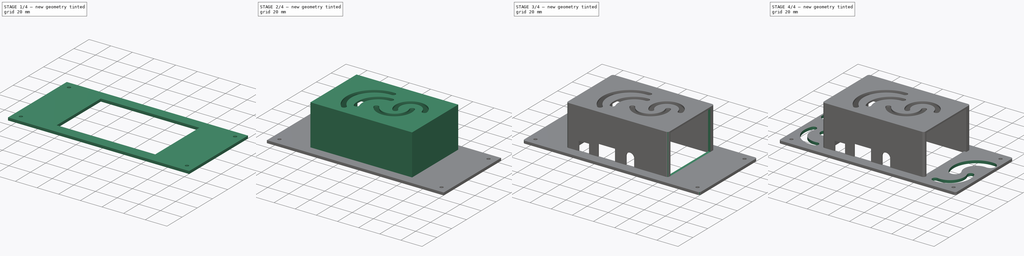
[diagram: build sequence overview — one tinted view per stage of 4, left to right]
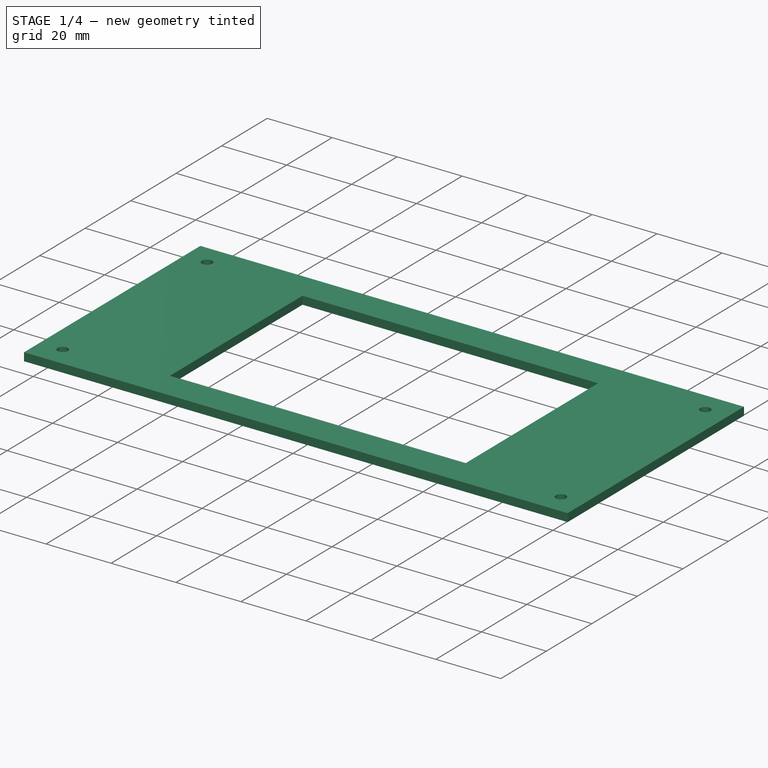
[diagram: stage 1 of 4 — iso view after this stage's code; geometry added in this stage tinted green]
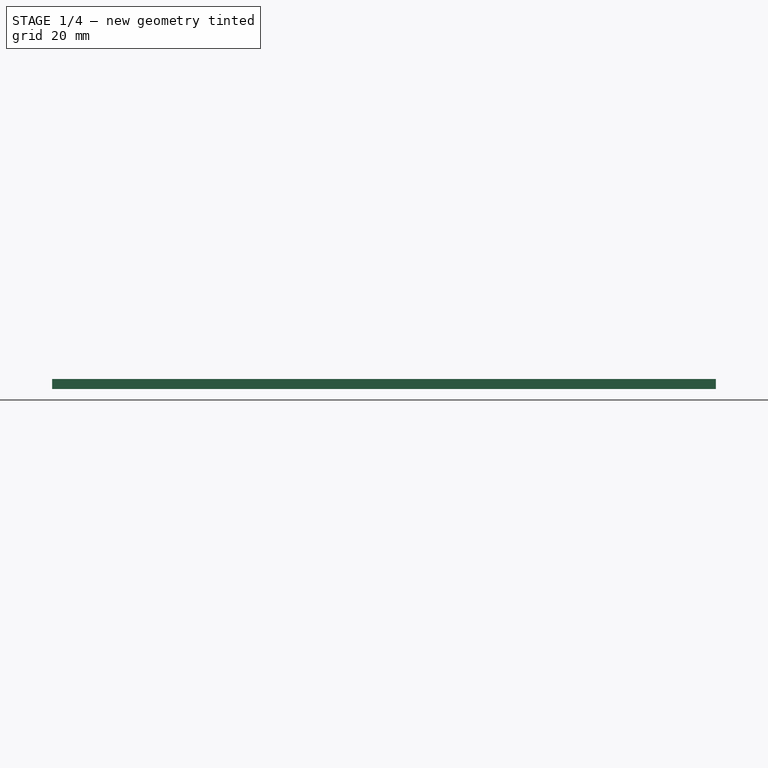
[diagram: stage 1 of 4 — front view after this stage's code; geometry added in this stage tinted green]
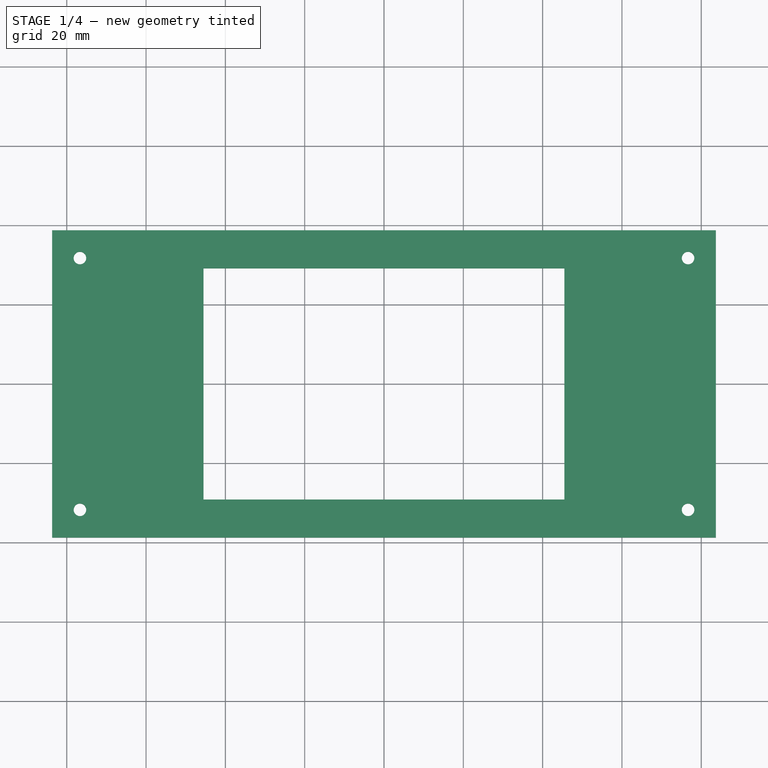
[diagram: stage 1 of 4 — top view after this stage's code; geometry added in this stage tinted green]
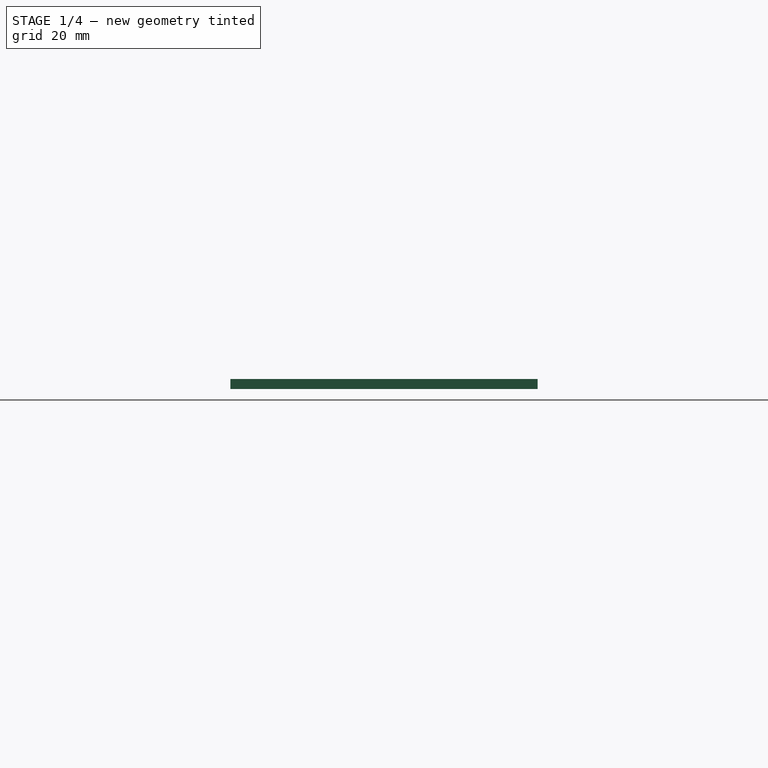
[diagram: stage 1 of 4 — right view after this stage's code; geometry added in this stage tinted green]
FCSTD DOCUMENT  (FreeCAD 0.20R29177 +426 (Git))
Label: libre_case (1)
License: All rights reserved
LicenseURL: http://en.wikipedia.org/wiki/All_rights_reserved
objects: Sketcher::SketchObject×9, PartDesign::Pocket×5, PartDesign::Pad×3, Spreadsheet::Sheet×1, PartDesign::Fillet×1, PartDesign::Mirrored×1, PartDesign::Body×1
note: 29 computed .brp shape members not serialized (recipe doc carries the construction recipe); baked Part::Feature solids carry a one-line shape summary decoded from their .brp
EXTERNAL_REF file=libre_base.FCStd obj=Pad
EXTERNAL_REF file=libre_base.FCStd obj=Sketch
EXTERNAL_REF file=libre_base.FCStd obj=Sketch002
EXTERNAL_REF file=libre_base.FCStd obj=Spreadsheet
EXTERNAL_REF file=base_modular_holder.FCStd obj=Sketch009
EXTERNAL_REF file=base_modular_holder.FCStd obj=Spreadsheet004

FEATURE [Sketcher::SketchObject] Sketch
  FullyConstrained = true
  MapMode = 5
  Support = -> [XY_Plane]
  expr: Constraints[10] = <<libre_base>>#<<Pad>>.Length
  expr: Constraints[11] = <<libre_base>>#<<Sketch>>.Constraints.r_xlen
  expr: Constraints[17] = <<libre_base>>#<<Sketch002>>.Constraints.pad_in
  expr: Constraints[38] = <<libre_base>>#<<Sketch002>>.Constraints.dia
  sketch-geometry (17):
    g0: LineSegment StartX=-83.675 StartY=38.75 StartZ=0 EndX=-83.675 EndY=-38.75 EndZ=0
    g1: LineSegment StartX=-83.675 StartY=-38.75 StartZ=0 EndX=83.675 EndY=-38.75 EndZ=0
    g2: LineSegment StartX=83.675 StartY=-38.75 StartZ=0 EndX=83.675 EndY=38.75 EndZ=0
    g3: LineSegment StartX=83.675 StartY=38.75 StartZ=0 EndX=-83.675 EndY=38.75 EndZ=0
    g4: GeomPoint X=0 Y=0 Z=0
    g5: GeomPoint X=0 Y=0 Z=0
    g6: LineSegment StartX=-76.675 StartY=31.75 StartZ=0 EndX=-83.675 EndY=31.75 EndZ=0
    g7: LineSegment StartX=-76.675 StartY=31.75 StartZ=0 EndX=-76.675 EndY=38.75 EndZ=0
    g8: LineSegment StartX=76.675 StartY=-31.75 StartZ=0 EndX=76.675 EndY=31.75 EndZ=0
    g9: LineSegment StartX=76.675 StartY=31.75 StartZ=0 EndX=-76.675 EndY=31.75 EndZ=0
    g10: LineSegment StartX=-76.675 StartY=31.75 StartZ=0 EndX=-76.675 EndY=-31.75 EndZ=0
    g11: LineSegment StartX=-76.675 StartY=-31.75 StartZ=0 EndX=76.675 EndY=-31.75 EndZ=0
    g12: GeomPoint X=0 Y=0 Z=0
    g13: Circle CenterX=-76.675 CenterY=-31.75 CenterZ=0 NormalX=0 NormalY=0 NormalZ=1 AngleXU=0 Radius=1.58
    g14: Circle CenterX=-76.675 CenterY=31.75 CenterZ=0 NormalX=0 NormalY=0 NormalZ=1 AngleXU=0 Radius=1.58
    g15: Circle CenterX=76.675 CenterY=31.75 CenterZ=0 NormalX=0 NormalY=0 NormalZ=1 AngleXU=0 Radius=1.58
    g16: Circle CenterX=76.675 CenterY=-31.75 CenterZ=0 NormalX=0 NormalY=0 NormalZ=1 AngleXU=0 Radius=1.58
  constraints (39):
    c: Coincident(g0,g1)
    c: Coincident(g1,g2)
    c: Coincident(g2,g3)
    c: Coincident(g3,g0)
    c: Horizontal(g1)
    c: Horizontal(g3)
    c: Vertical(g0)
    c: Vertical(g2)
    c: Symmetric(g1,g0,g4)
    c: Coincident(g4,g-1)
    c: DistanceX(g1,g1) = 167.35
    c: DistanceY(g0,g0) = 77.5
    c: Coincident(g5,g4)
    c: PointOnObject(g6,g0)
    c: PointOnObject(g7,g3)
    c: Vertical(g7)
    c: Horizontal(g6)
    c: DistanceY(g7,g7) = 7
    c: Equal(g7,g6)
    c: Coincident(g6,g7)
    c: Coincident(g8,g9)
    c: Coincident(g9,g10)
    c: Coincident(g10,g11)
    c: Coincident(g11,g8)
    c: Horizontal(g9)
    c: Horizontal(g11)
    c: Vertical(g8)
    c: Vertical(g10)
    c: Symmetric(g9,g8,g12)
    c: Coincident(g12,g4)
    c: Coincident(g9,g6)
    c: Coincident(g13,g10)
    c: Coincident(g14,g6)
    c: Coincident(g15,g8)
    c: Coincident(g16,g8)
    c: Equal(g15,g16)
    c: Equal(g16,g13)
    c: Equal(g13,g14)
    c: Diameter(g15) = 3.16
FEATURE [Sketcher::SketchObject] Sketch001
  FullyConstrained = true
  MapMode = 5
  Support = -> [XY_Plane]
  expr: .Constraints.in_xlen = <<libre_base>>#<<libre_data>>.full_xlen + <<case_data>>.space
  expr: .Constraints.in_ylen = <<libre_base>>#<<libre_data>>.full_ylen + <<case_data>>.space
  expr: .Constraints.out_xlen = <<libre_base>>#<<Pad>>.Length
  expr: .Constraints.out_ylen = <<libre_base>>#<<Sketch>>.Constraints.r_xlen
  sketch-geometry (10):
    g0: LineSegment StartX=-83.675 StartY=38.75 StartZ=0 EndX=-83.675 EndY=-38.75 EndZ=0
    g1: LineSegment StartX=-83.675 StartY=-38.75 StartZ=0 EndX=83.675 EndY=-38.75 EndZ=0
    g2: LineSegment StartX=83.675 StartY=-38.75 StartZ=0 EndX=83.675 EndY=38.75 EndZ=0
    g3: LineSegment StartX=83.675 StartY=38.75 StartZ=0 EndX=-83.675 EndY=38.75 EndZ=0
    g4: GeomPoint X=0 Y=0 Z=0
    g5: LineSegment StartX=-45.5 StartY=29.15 StartZ=0 EndX=-45.5 EndY=-29.15 EndZ=0
    g6: LineSegment StartX=-45.5 StartY=-29.15 StartZ=0 EndX=45.5 EndY=-29.15 EndZ=0
    g7: LineSegment StartX=45.5 StartY=-29.15 StartZ=0 EndX=45.5 EndY=29.15 EndZ=0
    g8: LineSegment StartX=45.5 StartY=29.15 StartZ=0 EndX=-45.5 EndY=29.15 EndZ=0
    g9: GeomPoint X=0 Y=0 Z=0
  constraints (24):
    c: Coincident(g0,g1)
    c: Coincident(g1,g2)
    c: Coincident(g2,g3)
    c: Coincident(g3,g0)
    c: Horizontal(g1)
    c: Horizontal(g3)
    c: Vertical(g0)
    c: Vertical(g2)
    c: Symmetric(g1,g0,g4)
    c: Coincident(g4,g-1)
    c: DistanceX(g1,g1) = 167.35  'out_xlen'
    c: DistanceY(g0,g0) = 77.5  'out_ylen'
    c: Coincident(g5,g6)
    c: Coincident(g6,g7)
    c: Coincident(g7,g8)
    c: Coincident(g8,g5)
    c: Horizontal(g6)
    c: Horizontal(g8)
    c: Vertical(g5)
    c: Vertical(g7)
    c: Symmetric(g6,g5,g9)
    c: Coincident(g9,g4)
    c: DistanceX(g6,g6) = 91  'in_xlen'
    c: DistanceY(g5,g5) = 58.3  'in_ylen'
FEATURE [PartDesign::Pad] Pad
  Direction = (0,0,1)
  Length = 2.5
  Length2 = 10
  Profile = -> Sketch001
  ReferenceAxis = -> Sketch001 [N_Axis]
  Type = 0
  expr: Length = 2.5mm
FEATURE [PartDesign::Pocket] Pocket
  BaseFeature = -> Pad
  Direction = (0,0,-1)
  Length = 5
  Length2 = 5
  Midplane = true
  Profile = -> Sketch
  ReferenceAxis = -> Sketch [N_Axis]
  Type = 1
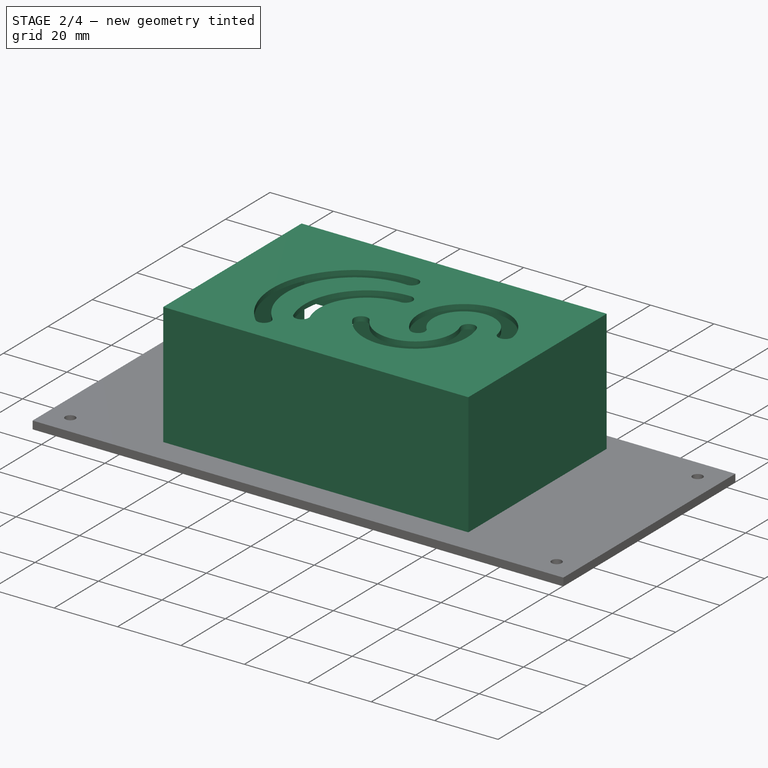
[diagram: stage 2 of 4 — iso view after this stage's code; geometry added in this stage tinted green]
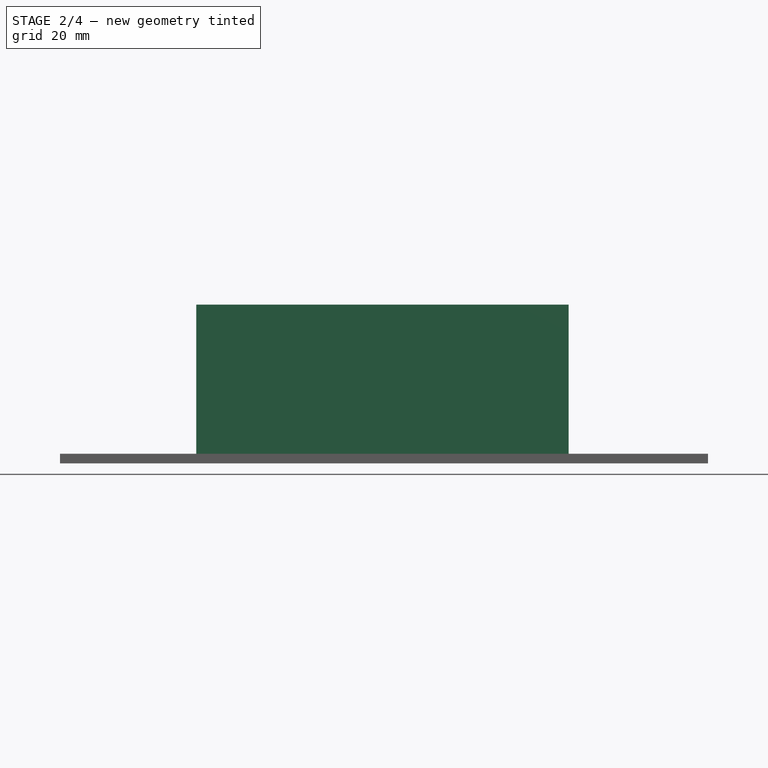
[diagram: stage 2 of 4 — front view after this stage's code; geometry added in this stage tinted green]
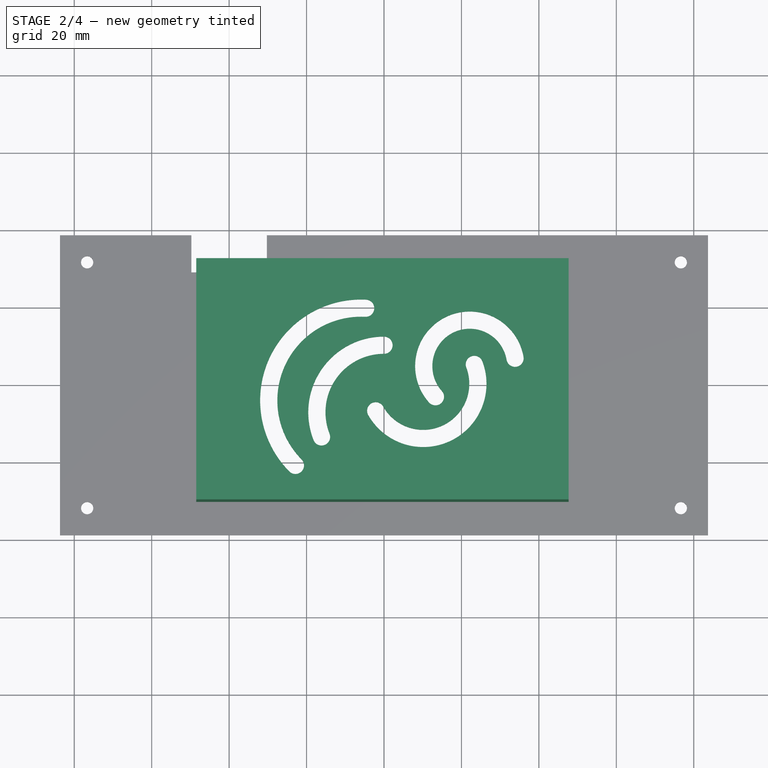
[diagram: stage 2 of 4 — top view after this stage's code; geometry added in this stage tinted green]
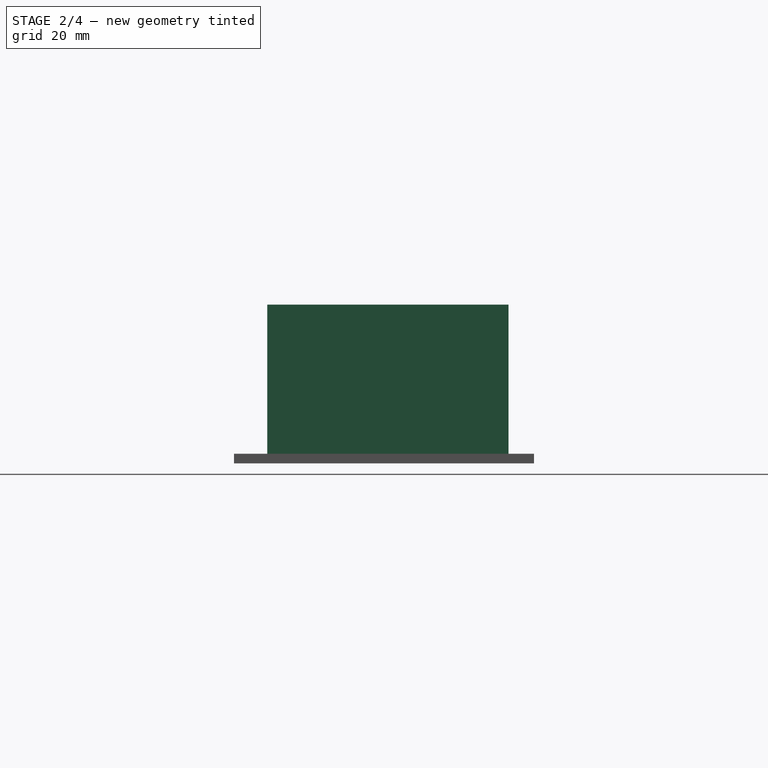
[diagram: stage 2 of 4 — right view after this stage's code; geometry added in this stage tinted green]
FEATURE [Spreadsheet::Sheet] Spreadsheet  label="case_data"
  cells = A1=Name; B1=Value; A2=space; B2(space)==0.8mm; A3=wall_thick; B3(wall_thick)==3mm
FEATURE [Sketcher::SketchObject] Sketch002
  AttachmentOffset = pos=(0,0,2.5) rot=(0,0,1;0rad)
  FullyConstrained = true
  MapMode = 5
  Placement = pos=(0,0,2.5) rot=(0,0,1;0rad)
  Support = -> [XY_Plane]
  expr: .AttachmentOffset.Base.z = <<Pad>>.Length
  expr: .Constraints.in_xlen = <<Sketch001>>.Constraints.in_xlen
  expr: .Constraints.in_ylen = <<Sketch001>>.Constraints.in_ylen
  expr: Constraints[13] = <<libre_base>>#<<libre_data>>.pad2usb
  expr: Constraints[36] = <<libre_base>>#<<libre_data>>.power2pad
  expr: Constraints[49] = <<case_data>>.wall_thick
  sketch-geometry (19):
    g0: LineSegment StartX=-45.5 StartY=29.15 StartZ=0 EndX=-45.5 EndY=-29.15 EndZ=0
    g1: LineSegment StartX=-45.5 StartY=-29.15 StartZ=0 EndX=45.5 EndY=-29.15 EndZ=0
    g2: LineSegment StartX=45.5 StartY=-29.15 StartZ=0 EndX=45.5 EndY=29.15 EndZ=0
    g3: LineSegment StartX=45.5 StartY=29.15 StartZ=0 EndX=-45.5 EndY=29.15 EndZ=0
    g4: GeomPoint X=0 Y=0 Z=0
    g5: GeomPoint X=0 Y=0 Z=0
    g6: LineSegment StartX=45.5 StartY=29.15 StartZ=0 EndX=47.7 EndY=29.15 EndZ=0
    g7: LineSegment StartX=45.5 StartY=29.15 StartZ=0 EndX=45.5 EndY=26.95 EndZ=0
    g8: LineSegment StartX=47.7 StartY=32.15 StartZ=0 EndX=-48.5 EndY=32.15 EndZ=0
    g9: LineSegment StartX=-48.5 StartY=32.15 StartZ=0 EndX=-48.5 EndY=-30.15 EndZ=0
    g10: LineSegment StartX=-48.5 StartY=-30.15 StartZ=0 EndX=47.7 EndY=-30.15 EndZ=0
    g11: LineSegment StartX=47.7 StartY=-30.15 StartZ=0 EndX=47.7 EndY=32.15 EndZ=0
    g12: LineSegment StartX=-45.5 StartY=29.15 StartZ=0 EndX=-48.5 EndY=29.15 EndZ=0
    g13: LineSegment StartX=45.5 StartY=-29.15 StartZ=0 EndX=45.5 EndY=-30.15 EndZ=0
    g14: LineSegment StartX=-48.5 StartY=0 StartZ=0 EndX=-0.4 EndY=0 EndZ=0
    g15: LineSegment StartX=47.7 StartY=0 StartZ=0 EndX=-0.4 EndY=0 EndZ=0
    g16: LineSegment StartX=0 StartY=-30.15 StartZ=0 EndX=0 EndY=1 EndZ=0
    g17: LineSegment StartX=-45.5 StartY=29.15 StartZ=0 EndX=-45.5 EndY=32.15 EndZ=0
    g18: LineSegment StartX=0 StartY=1 StartZ=0 EndX=0 EndY=32.15 EndZ=0
  constraints (58):
    c: Coincident(g0,g1)
    c: Coincident(g1,g2)
    c: Coincident(g2,g3)
    c: Coincident(g3,g0)
    c: Horizontal(g1)
    c: Horizontal(g3)
    c: Vertical(g0)
    c: Vertical(g2)
    c: Symmetric(g1,g0,g4)
    c: Coincident(g4,g-1)
    c: Coincident(g5,g4)
    c: Coincident(g6,g2)
    c: Horizontal(g6)
    c: DistanceX(g6,g6) = 2.2
    c: DistanceX(g1,g1) = 91  'in_xlen'
    c: DistanceY(g0,g0) = 58.3  'in_ylen'
    c: Coincident(g7,g2)
    c: Vertical(g7)
    c: Horizontal(g8)
    c: Coincident(g8,g9)
    c: Vertical(g9)
    c: Coincident(g9,g10)
    c: Horizontal(g10)
    c: Coincident(g10,g11)
    c: Coincident(g11,g8)
    c: Vertical(g11)
    c: PointOnObject(g6,g11)
    c: Coincident(g12,g0)
    c: PointOnObject(g12,g9)
    c: Horizontal(g12)
    c: DistanceX(g9,g10) = 96.2  'out_xlen'
    c: DistanceY(g9,g9) = 62.3  'out_ylen'
    c: Equal(g6,g7)
    c: Coincident(g13,g1)
    c: PointOnObject(g13,g10)
    c: Vertical(g13)
    c: DistanceY(g13,g13) = 1
    c: PointOnObject(g14,g9)
    c: PointOnObject(g14,g-1)
    c: Horizontal(g14)
    c: PointOnObject(g15,g11)
    c: Coincident(g15,g14)
    c: Horizontal(g15)
    c: Equal(g14,g15)
    c: DistanceX(g14,g4) = 0.4  'l_xlen_offset'
    c: PointOnObject(g16,g10)
    c: PointOnObject(g16,g-2)
    c: Vertical(g16)
    c: DistanceY(g16,g4) = -1  'down_ylen_offset'
    c: DistanceX(g12,g12) = 3
    c: Coincident(g17,g0)
    c: PointOnObject(g17,g8)
    c: Vertical(g17)
    c: Equal(g17,g12)
    c: Coincident(g18,g16)
    c: PointOnObject(g18,g8)
    c: Vertical(g18)
    c: Equal(g18,g16)
FEATURE [PartDesign::Pad] Pad001
  BaseFeature = -> Pocket
  Direction = (0,0,1)
  Length = 37
  Length2 = 10
  Profile = -> Sketch002
  ReferenceAxis = -> Sketch002 [N_Axis]
  Type = 0
  expr: Length = <<libre_base>>#<<libre_data>>.full_zlen - <<Pad>>.Length
FEATURE [Sketcher::SketchObject] Sketch003
  AttachmentOffset = pos=(0,0,39.5) rot=(0,0,1;0rad)
  FullyConstrained = false
  MapMode = 5
  Placement = pos=(0,0,39.5) rot=(0,0,1;0rad)
  Support = -> [XY_Plane]
  expr: .AttachmentOffset.Base.z = <<Pad>>.Length + <<Pad001>>.Length
  expr: Constraints[67] = Sketch002.Constraints.out_xlen
  expr: Constraints[68] = Sketch002.Constraints.out_ylen
  expr: Constraints[69] = Sketch002.Constraints.l_xlen_offset
  expr: Constraints[70] = -Sketch002.Constraints.down_ylen_offset
  sketch-geometry (30):
    g0: GeomPoint X=0 Y=0 Z=0
    g1: ArcOfCircle CenterX=0 CenterY=-7.6675 CenterZ=0 NormalX=0 NormalY=0 NormalZ=1 AngleXU=0 Radius=19.5595 StartAngle=1.5708 EndAngle=3.51701
    g2: ArcOfCircle CenterX=0 CenterY=-7.6675 CenterZ=0 NormalX=0 NormalY=0 NormalZ=1 AngleXU=0 Radius=15.1166 StartAngle=1.5708 EndAngle=3.51701
    g3: ArcOfCircle CenterX=10.1334 CenterY=-0.303793 CenterZ=0 NormalX=0 NormalY=0 NormalZ=1 AngleXU=0 Radius=11.8965 StartAngle=3.65848 EndAngle=6.64692
    g4: ArcOfCircle CenterX=10.1334 CenterY=-0.303793 CenterZ=0 NormalX=0 NormalY=0 NormalZ=1 AngleXU=0 Radius=16.3394 StartAngle=3.65848 EndAngle=6.64692
    g5: LineSegment StartX=-18.1973 StartY=-14.8392 StartZ=0 EndX=-14.0638 EndY=-13.2101 EndZ=0
    g6: LineSegment StartX=7e-16 StartY=11.892 StartZ=0 EndX=-4e-16 EndY=7.44911 EndZ=0
    g7: LineSegment StartX=-0.208963 StartY=-6.1828 StartZ=0 EndX=-4.07145 EndY=-8.37839 EndZ=0
    g8: LineSegment StartX=21.2515 StartY=3.92858 StartZ=0 EndX=25.4038 EndY=5.50922 EndZ=0
    g9: ArcOfCircle CenterX=-16.1306 CenterY=-14.0246 CenterZ=0 NormalX=0 NormalY=0 NormalZ=1 AngleXU=0 Radius=2.22146 StartAngle=3.51701 EndAngle=6.6586
    g10: ArcOfCircle CenterX=0 CenterY=9.67057 CenterZ=0 NormalX=0 NormalY=0 NormalZ=1 AngleXU=0 Radius=2.22146 StartAngle=4.71239 EndAngle=7.85398
    g11: ArcOfCircle CenterX=-2.14021 CenterY=-7.2806 CenterZ=0 NormalX=0 NormalY=0 NormalZ=1 AngleXU=0 Radius=2.22146 StartAngle=0.516891 EndAngle=3.65848
    g12: ArcOfCircle CenterX=23.3276 CenterY=4.7189 CenterZ=0 NormalX=0 NormalY=0 NormalZ=1 AngleXU=0 Radius=2.22146 StartAngle=0.363734 EndAngle=3.50533
    g13: ArcOfCircle CenterX=22.1436 CenterY=4.26744 CenterZ=0 NormalX=0 NormalY=0 NormalZ=1 AngleXU=0 Radius=9.65498 StartAngle=0.171753 EndAngle=3.87046
    g14: ArcOfCircle CenterX=22.1436 CenterY=4.26744 CenterZ=0 NormalX=0 NormalY=0 NormalZ=1 AngleXU=0 Radius=14.0979 StartAngle=0.171753 EndAngle=3.87046
    g15: LineSegment StartX=14.9417 StartY=-2.16305 StartZ=0 EndX=11.6276 EndY=-5.12215 EndZ=0
    g16: LineSegment StartX=31.6565 StartY=5.91757 StartZ=0 EndX=36.034 EndY=6.67691 EndZ=0
    g17: ArcOfCircle CenterX=13.2846 CenterY=-3.6426 CenterZ=0 NormalX=0 NormalY=0 NormalZ=1 AngleXU=0 Radius=2.22146 StartAngle=3.87046 EndAngle=7.01206
    g18: ArcOfCircle CenterX=33.8453 CenterY=6.29724 CenterZ=0 NormalX=0 NormalY=0 NormalZ=1 AngleXU=0 Radius=2.22146 StartAngle=3.31335 EndAngle=6.45494
    g19: ArcOfCircle CenterX=-5.90883 CenterY=-4.60694 CenterZ=0 NormalX=0 NormalY=0 NormalZ=1 AngleXU=0 Radius=26.084 StartAngle=1.52182 EndAngle=3.92093
    g20: ArcOfCircle CenterX=-5.90883 CenterY=-4.60694 CenterZ=0 NormalX=0 NormalY=0 NormalZ=1 AngleXU=0 Radius=21.641 StartAngle=1.52182 EndAngle=3.92093
    g21: LineSegment StartX=-21.3039 StartY=-19.8164 StartZ=0 EndX=-24.4645 EndY=-22.9389 EndZ=0
    g22: LineSegment StartX=-4.84933 StartY=17.0081 StartZ=0 EndX=-4.63181 EndY=21.4457 EndZ=0
    g23: ArcOfCircle CenterX=-22.8842 CenterY=-21.3776 CenterZ=0 NormalX=0 NormalY=0 NormalZ=1 AngleXU=0 Radius=2.22146 StartAngle=3.92093 EndAngle=7.06252
    g24: ArcOfCircle CenterX=-4.74057 CenterY=19.2269 CenterZ=0 NormalX=0 NormalY=0 NormalZ=1 AngleXU=0 Radius=2.22146 StartAngle=4.66341 EndAngle=7.805
    g25: LineSegment StartX=-48.5 StartY=32.15 StartZ=0 EndX=-48.5 EndY=-30.15 EndZ=0
    g26: LineSegment StartX=-48.5 StartY=-30.15 StartZ=0 EndX=47.7 EndY=-30.15 EndZ=0
    g27: LineSegment StartX=47.7 StartY=-30.15 StartZ=0 EndX=47.7 EndY=32.15 EndZ=0
    g28: LineSegment StartX=47.7 StartY=32.15 StartZ=0 EndX=-48.5 EndY=32.15 EndZ=0
    g29: GeomPoint X=-0.4 Y=1 Z=0
  constraints (71):
    c: Coincident(g0,g-1)
    c: PointOnObject(g1,g-2)
    c: Coincident(g2,g1)
    c: PointOnObject(g2,g-2)
    c: Coincident(g4,g3)
    c: Coincident(g5,g1)
    c: Coincident(g5,g2)
    c: Coincident(g6,g1)
    c: Coincident(g6,g2)
    c: Coincident(g7,g3)
    c: Coincident(g7,g4)
    c: Coincident(g8,g3)
    c: Coincident(g8,g4)
    c: Perpendicular(g3,g8)
    c: Perpendicular(g4,g7)
    c: Perpendicular(g2,g5)
    c: Perpendicular(g1,g6)
    c: PointOnObject(g9,g5)
    c: Coincident(g9,g1)
    c: Coincident(g9,g2)
    c: PointOnObject(g10,g6)
    c: Coincident(g10,g1)
    c: Coincident(g10,g2)
    c: PointOnObject(g11,g7)
    c: Coincident(g11,g3)
    c: Coincident(g11,g4)
    c: PointOnObject(g12,g8)
    c: Coincident(g12,g3)
    c: Coincident(g12,g4)
    c: Equal(g8,g6)
    c: Coincident(g14,g13)
    c: Coincident(g15,g13)
    c: Coincident(g15,g14)
    c: Coincident(g16,g13)
    c: Coincident(g16,g14)
    c: Perpendicular(g13,g16)
    c: Perpendicular(g14,g15)
    c: PointOnObject(g17,g15)
    c: Coincident(g17,g13)
    c: Coincident(g17,g14)
    c: PointOnObject(g18,g16)
    c: Coincident(g18,g14)
    c: Coincident(g18,g13)
    c: Equal(g16,g8)
    c: Coincident(g20,g19)
    c: Coincident(g21,g20)
    c: Coincident(g21,g19)
    c: Coincident(g22,g20)
    c: Coincident(g22,g19)
    c: Perpendicular(g19,g22)
    c: Perpendicular(g20,g21)
    c: PointOnObject(g23,g21)
    c: Coincident(g23,g20)
    c: Coincident(g23,g19)
    c: PointOnObject(g24,g22)
    c: Coincident(g24,g19)
    c: Coincident(g24,g20)
    c: Equal(g22,g6)
    c: Coincident(g25,g26)
    c: Coincident(g26,g27)
    c: Coincident(g27,g28)
    c: Coincident(g28,g25)
    c: Horizontal(g26)
    c: Horizontal(g28)
    c: Vertical(g25)
    c: Vertical(g27)
    c: Symmetric(g26,g25,g29)
    c: DistanceX(g26,g26) = 96.2
    c: DistanceY(g25,g25) = 62.3
    c: DistanceX(g29,g0) = 0.4
    c: DistanceY(g0,g29) = 1
FEATURE [PartDesign::Pad] Pad002
  BaseFeature = -> Pad001
  Direction = (0,0,1)
  Length = 1.5
  Length2 = 10
  Profile = -> Sketch003
  ReferenceAxis = -> Sketch003 [N_Axis]
  Type = 0
  expr: Length = <<case_data>>.wall_thick / 2
FEATURE [Sketcher::SketchObject] Sketch004
  AttachmentOffset = pos=(0,0,-29.15) rot=(0,0,1;0rad)
  FullyConstrained = true
  MapMode = 5
  Placement = pos=(0,29.15,6.5e-15) rot=(1,0,0;1.5708rad)
  Support = -> [XZ_Plane]
  expr: .AttachmentOffset.Base.x = 0
  expr: .AttachmentOffset.Base.y = 0
  expr: .AttachmentOffset.Base.z = -<<Sketch001>>.Constraints.in_ylen / 2
  expr: Constraints[12] = <<base_modular_holder>>#<<wire_hole_data>>.wire_xlen * 1.5
  expr: Constraints[13] = <<Pad>>.Length + <<Pad001>>.Length / 2
  expr: Constraints[15] = <<base_modular_holder>>#<<Sketch009>>.Constraints.xlen
  sketch-geometry (6):
    g0: LineSegment StartX=-49.765 StartY=21 StartZ=0 EndX=-49.765 EndY=0 EndZ=0
    g1: LineSegment StartX=-49.765 StartY=0 StartZ=0 EndX=-30.265 EndY=0 EndZ=0
    g2: LineSegment StartX=-30.265 StartY=0 StartZ=0 EndX=-30.265 EndY=21 EndZ=0
    g3: LineSegment StartX=-30.265 StartY=21 StartZ=0 EndX=-49.765 EndY=21 EndZ=0
    g4: GeomPoint X=-40.015 Y=10.5 Z=0
    g5: LineSegment StartX=-40.015 StartY=10.5 StartZ=0 EndX=-40.015 EndY=0 EndZ=0
  constraints (16):
    c: PointOnObject(g5,g-1)
    c: Coincident(g0,g1)
    c: Coincident(g1,g2)
    c: Coincident(g2,g3)
    c: Coincident(g3,g0)
    c: Horizontal(g1)
    c: Horizontal(g3)
    c: Vertical(g0)
    c: Vertical(g2)
    c: Symmetric(g1,g0,g4)
    c: Coincident(g5,g4)
    c: Vertical(g5)
    c: DistanceX(g3,g3) = 19.5
    c: DistanceY(g0,g0) = 21
    c: PointOnObject(g0,g-1)
    c: DistanceX(g4,g-1) = 40.015
FEATURE [PartDesign::Pocket] Pocket001
  BaseFeature = -> Pad002
  Direction = (0,1,-2e-16)
  Length = 2
  Length2 = 5
  Profile = -> Sketch004
  ReferenceAxis = -> Sketch004 [N_Axis]
  Type = 1
  expr: Length = 2mm
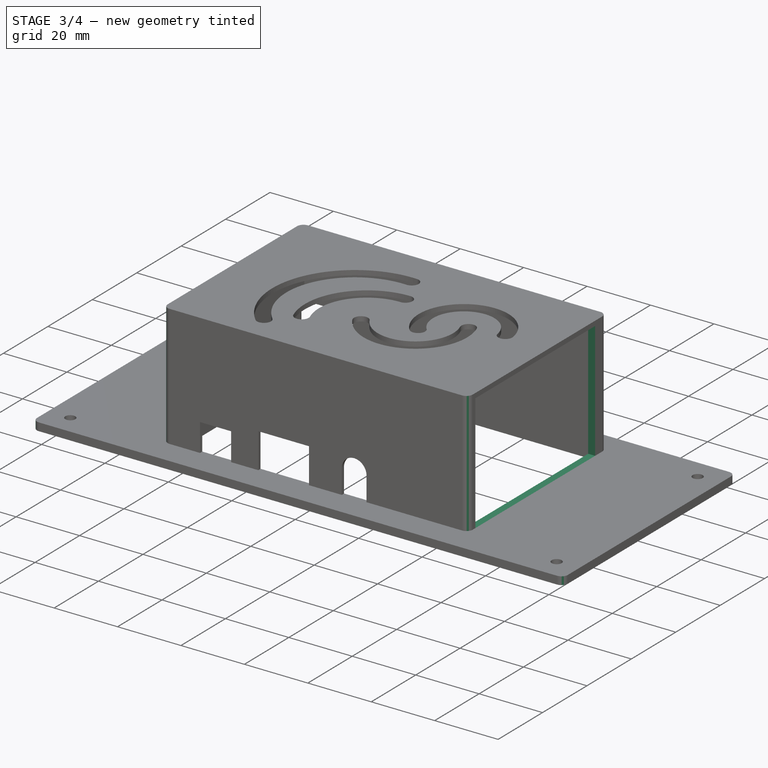
[diagram: stage 3 of 4 — iso view after this stage's code; geometry added in this stage tinted green]
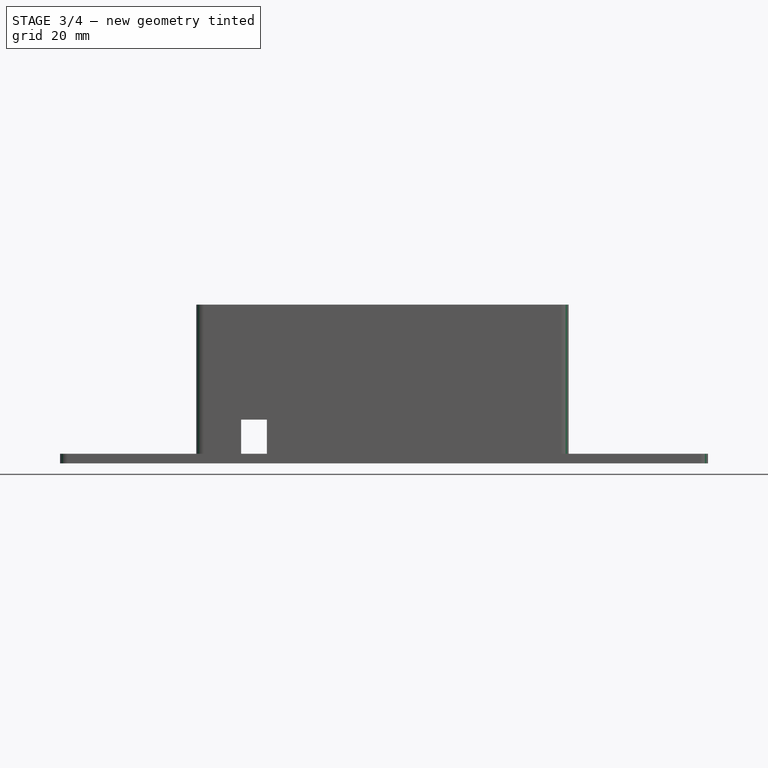
[diagram: stage 3 of 4 — front view after this stage's code; geometry added in this stage tinted green]
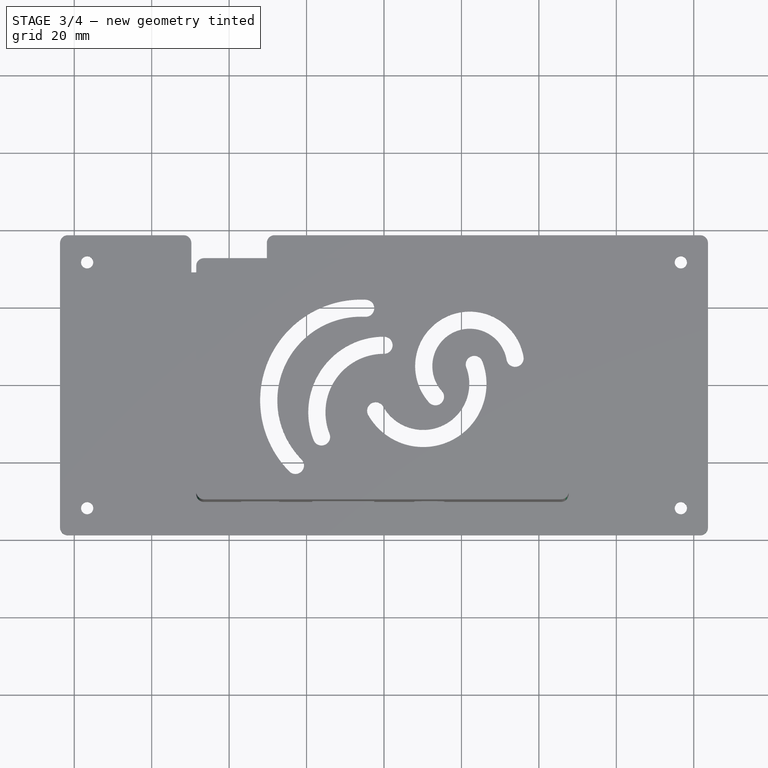
[diagram: stage 3 of 4 — top view after this stage's code; geometry added in this stage tinted green]
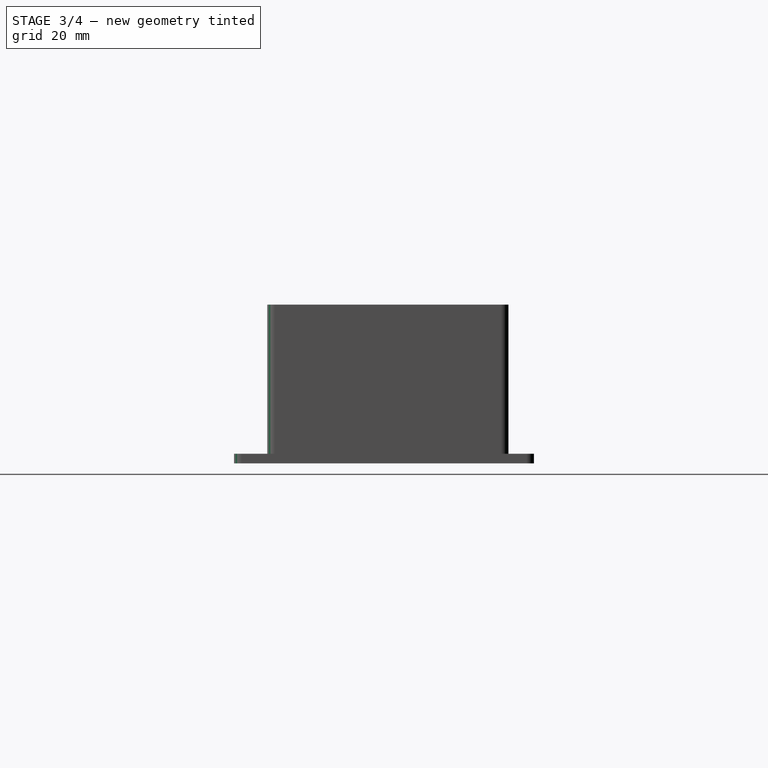
[diagram: stage 3 of 4 — right view after this stage's code; geometry added in this stage tinted green]
FEATURE [Sketcher::SketchObject] Sketch005
  FullyConstrained = true
  MapMode = 5
  Placement = pos=(0,0,0) rot=(0.57735,0.57735,0.57735;2.0944rad)
  Support = -> [YZ_Plane]
  expr: Constraints[14] = <<Sketch001>>.Constraints.in_ylen - <<libre_base>>#<<libre_data>>.pad2usb * 2
  expr: Constraints[15] = <<Pad001>>.Length
  expr: Constraints[2] = <<Pad>>.Length
  sketch-geometry (6):
    g0: LineSegment StartX=0 StartY=0 StartZ=0 EndX=0 EndY=2.5 EndZ=0
    g1: LineSegment StartX=26.95 StartY=39.5 StartZ=0 EndX=26.95 EndY=2.5 EndZ=0
    g2: LineSegment StartX=26.95 StartY=2.5 StartZ=0 EndX=-26.95 EndY=2.5 EndZ=0
    g3: LineSegment StartX=-26.95 StartY=2.5 StartZ=0 EndX=-26.95 EndY=39.5 EndZ=0
    g4: LineSegment StartX=-26.95 StartY=39.5 StartZ=0 EndX=26.95 EndY=39.5 EndZ=0
    g5: GeomPoint X=0 Y=21 Z=0
  constraints (16):
    c: Coincident(g0,g-1)
    c: PointOnObject(g0,g-2)
    c: DistanceY(g0,g0) = 2.5
    c: Coincident(g1,g2)
    c: Coincident(g2,g3)
    c: Coincident(g3,g4)
    c: Coincident(g4,g1)
    c: Horizontal(g2)
    c: Horizontal(g4)
    c: Vertical(g1)
    c: Vertical(g3)
    c: Symmetric(g2,g1,g5)
    c: PointOnObject(g5,g-2)
    c: PointOnObject(g0,g2)
    c: DistanceX(g2,g2) = 53.9
    c: DistanceY(g3,g3) = 37
FEATURE [PartDesign::Pocket] Pocket002
  BaseFeature = -> Pocket001
  Direction = (-1,2e-16,-3e-16)
  Length = 48.5
  Length2 = 5
  Profile = -> Sketch005
  ReferenceAxis = -> Sketch005 [N_Axis]
  Reversed = true
  Type = 0
  expr: Length = Sketch002.Constraints.in_xlen / 2 + <<case_data>>.wall_thick
FEATURE [Sketcher::SketchObject] Sketch006
  FullyConstrained = true
  MapMode = 5
  Placement = pos=(0,0,0) rot=(1,0,0;1.5708rad)
  Support = -> [XZ_Plane]
FEATURE [Sketcher::SketchObject] Sketch007
  AttachmentOffset = pos=(0,0,0) rot=(0,1,0;3.14159rad)
  FullyConstrained = true
  MapMode = 5
  Placement = pos=(0,0,0) rot=(0,0.707107,0.707107;3.14159rad)
  Support = -> [XZ_Plane]
  expr: Constraints[14] = <<libre_base>>#<<libre_data>>.av_len + <<case_data>>.space
  expr: Constraints[21] = <<libre_base>>#<<libre_data>>.av_height + <<case_data>>.space
  expr: Constraints[22] = <<Pad>>.Length
  expr: Constraints[25] = <<libre_base>>#<<libre_data>>.full_xlen / 2
  expr: Constraints[28] = <<libre_base>>#<<libre_data>>.usb2hdmi + <<case_data>>.space / 2
  expr: Constraints[38] = <<libre_base>>#<<libre_data>>.hdmi_len + <<case_data>>.space
  expr: Constraints[39] = <<libre_base>>#<<libre_data>>.hdmi_height + <<case_data>>.space
  expr: Constraints[4] = <<libre_base>>#<<libre_data>>.full_xlen / 2 - <<libre_base>>#<<libre_data>>.usb2av + <<case_data>>.space / 2
  expr: Constraints[51] = <<libre_base>>#<<libre_data>>.usb2power + <<case_data>>.space / 2
  expr: Constraints[52] = <<libre_base>>#<<libre_data>>.power_len + <<case_data>>.space
  expr: Constraints[53] = <<libre_base>>#<<libre_data>>.power_height + <<case_data>>.space
  sketch-geometry (19):
    g0: LineSegment StartX=0 StartY=0 StartZ=0 EndX=0 EndY=2.5 EndZ=0
    g1: LineSegment StartX=0 StartY=2.5 StartZ=0 EndX=-15.6 EndY=2.5 EndZ=0
    g2: LineSegment StartX=-15.6 StartY=2.5 StartZ=0 EndX=-15.6 EndY=10.1 EndZ=0
    g3: LineSegment StartX=-15.6 StartY=2.5 StartZ=0 EndX=-7.8 EndY=2.5 EndZ=0
    g4: LineSegment StartX=-7.8 StartY=2.5 StartZ=0 EndX=-7.8 EndY=10.1 EndZ=0
    g5: LineSegment StartX=-15.6 StartY=10.1 StartZ=0 EndX=-7.8 EndY=10.1 EndZ=0
    g6: ArcOfCircle CenterX=-11.7 CenterY=10.1 CenterZ=0 NormalX=0 NormalY=0 NormalZ=1 AngleXU=0 Radius=3.9 StartAngle=0 EndAngle=3.14159
    g7: LineSegment StartX=-11.7 StartY=10.1 StartZ=0 EndX=-11.7 EndY=14 EndZ=0
    g8: LineSegment StartX=0 StartY=2.5 StartZ=0 EndX=-45.1 EndY=2.5 EndZ=0
    g9: LineSegment StartX=0 StartY=2.5 StartZ=0 EndX=2.52 EndY=2.5 EndZ=0
    g10: LineSegment StartX=2.52 StartY=2.5 StartZ=0 EndX=2.52 EndY=13.6 EndZ=0
    g11: LineSegment StartX=2.52 StartY=13.6 StartZ=0 EndX=18.52 EndY=13.6 EndZ=0
    g12: LineSegment StartX=18.52 StartY=13.6 StartZ=0 EndX=18.52 EndY=2.5 EndZ=0
    g13: LineSegment StartX=18.52 StartY=2.5 StartZ=0 EndX=2.52 EndY=2.5 EndZ=0
    g14: LineSegment StartX=18.52 StartY=2.5 StartZ=0 EndX=27.1 EndY=2.5 EndZ=0
    g15: LineSegment StartX=27.1 StartY=2.5 StartZ=0 EndX=36.9 EndY=2.5 EndZ=0
    g16: LineSegment StartX=36.9 StartY=2.5 StartZ=0 EndX=36.9 EndY=11.3 EndZ=0
    g17: LineSegment StartX=36.9 StartY=11.3 StartZ=0 EndX=27.1 EndY=11.3 EndZ=0
    g18: LineSegment StartX=27.1 StartY=11.3 StartZ=0 EndX=27.1 EndY=2.5 EndZ=0
  constraints (54):
    c: Coincident(g0,g-1)
    c: PointOnObject(g0,g-2)
    c: Coincident(g1,g0)
    c: Horizontal(g1)
    c: DistanceX(g1,g1) = 15.6
    c: Coincident(g2,g1)
    c: Vertical(g2)
    c: Coincident(g3,g2)
    c: PointOnObject(g3,g1)
    c: Coincident(g4,g3)
    c: Vertical(g4)
    c: Coincident(g5,g2)
    c: Coincident(g5,g4)
    c: Horizontal(g5)
    c: DistanceX(g3,g3) = 7.8
    c: PointOnObject(g6,g5)
    c: Coincident(g6,g2)
    c: Coincident(g6,g4)
    c: Coincident(g7,g6)
    c: PointOnObject(g7,g6)
    c: Vertical(g7)
    c: DistanceY(g2,g7) = 11.5
    c: DistanceY(g0,g0) = 2.5
    c: Coincident(g8,g0)
    c: Horizontal(g8)
    c: DistanceX(g8,g8) = 45.1
    c: Coincident(g9,g0)
    c: Horizontal(g9)
    c: DistanceX(g8,g9) = 47.62
    c: Coincident(g9,g10)
    c: Vertical(g10)
    c: Coincident(g10,g11)
    c: Horizontal(g11)
    c: Coincident(g11,g12)
    c: Vertical(g12)
    c: Coincident(g12,g13)
    c: Coincident(g13,g10)
    c: Horizontal(g13)
    c: DistanceX(g11,g11) = 16
    c: DistanceY(g12,g12) = 11.1
    c: Coincident(g14,g12)
    c: Horizontal(g14)
    c: Coincident(g15,g16)
    c: Coincident(g16,g17)
    c: Coincident(g17,g18)
    c: Coincident(g18,g15)
    c: Horizontal(g15)
    c: Horizontal(g17)
    c: Vertical(g16)
    c: Vertical(g18)
    c: Coincident(g15,g14)
    c: DistanceX(g8,g15) = 72.2
    c: DistanceX(g15,g15) = 9.8
    c: DistanceY(g16,g16) = 8.8
FEATURE [PartDesign::Pocket] Pocket003
  BaseFeature = -> Pocket002
  Direction = (-1e-16,-1,2e-16)
  Length = 5
  Length2 = 5
  Profile = -> Sketch007
  ReferenceAxis = -> Sketch007 [N_Axis]
  Type = 1
FEATURE [PartDesign::Fillet] Fillet
  Base = -> Pocket003 [Edge102,Edge113,Edge92,Edge90,Edge2,Edge1,Edge38,Edge8,Edge7,Edge84,Edge61]
  BaseFeature = -> Pocket003
  Radius = 2
  SupportTransform = false
  UseAllEdges = false
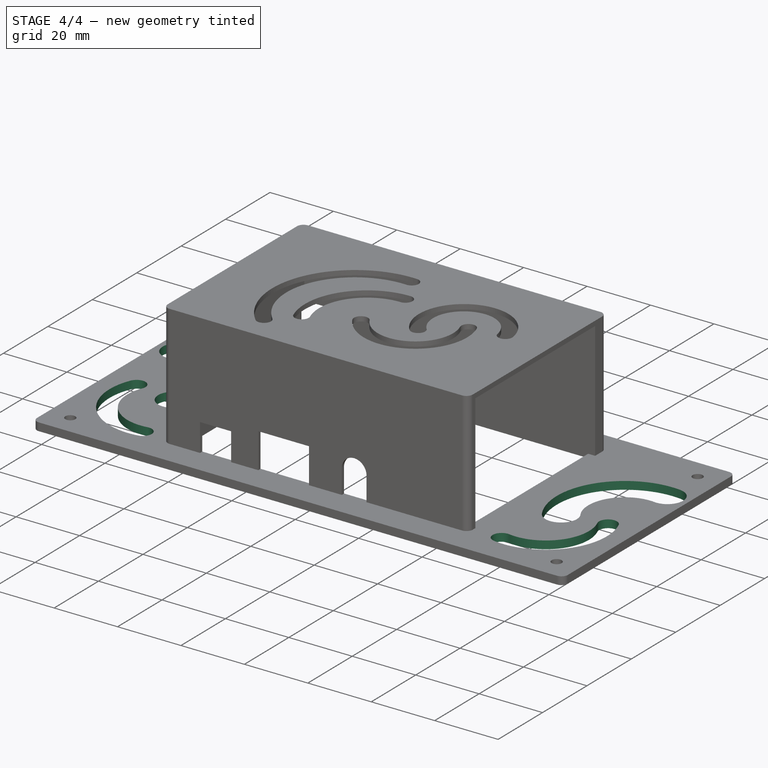
[diagram: stage 4 of 4 — iso view after this stage's code; geometry added in this stage tinted green]
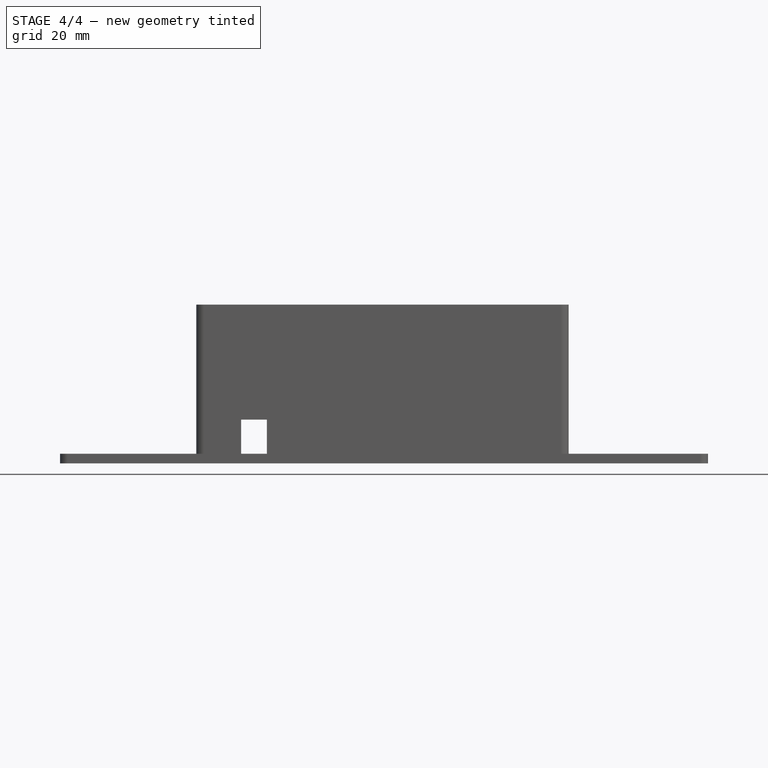
[diagram: stage 4 of 4 — front view after this stage's code; geometry added in this stage tinted green]
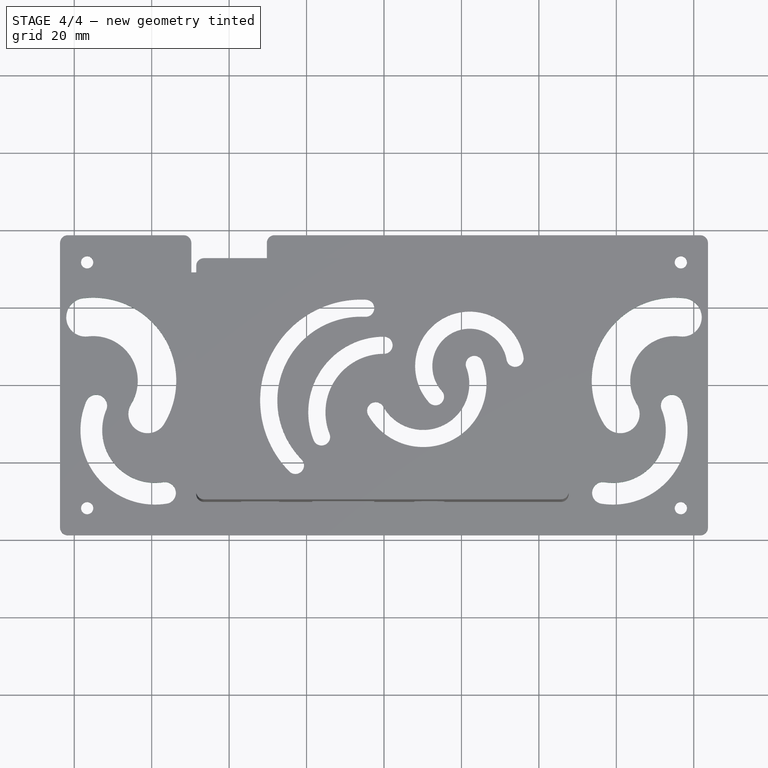
[diagram: stage 4 of 4 — top view after this stage's code; geometry added in this stage tinted green]
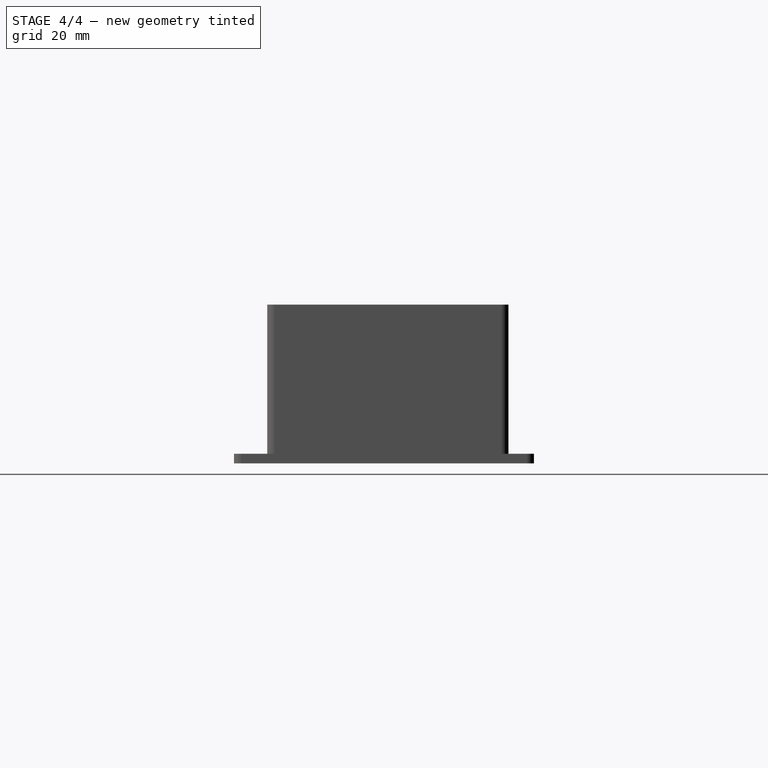
[diagram: stage 4 of 4 — right view after this stage's code; geometry added in this stage tinted green]
FEATURE [Sketcher::SketchObject] Sketch008
  FullyConstrained = false
  MapMode = 5
  Support = -> [XY_Plane]
  sketch-geometry (12):
    g0: ArcOfCircle CenterX=-75.1196 CenterY=1.1715 CenterZ=0 NormalX=0 NormalY=0 NormalZ=1 AngleXU=0 Radius=21.4608 StartAngle=5.73521 EndAngle=7.97414
    g1: ArcOfCircle CenterX=-75.1196 CenterY=1.1715 CenterZ=0 NormalX=0 NormalY=0 NormalZ=1 AngleXU=0 Radius=11.5122 StartAngle=5.73521 EndAngle=7.97414
    g2: LineSegment StartX=-76.4996 StartY=12.6007 StartZ=0 EndX=-77.6921 EndY=22.4775 EndZ=0
    g3: LineSegment StartX=-65.293 StartY=-4.82592 StartZ=0 EndX=-56.8011 EndY=-10.0087 EndZ=0
    g4: ArcOfCircle CenterX=-77.0958 CenterY=17.5391 CenterZ=0 NormalX=0 NormalY=0 NormalZ=1 AngleXU=0 Radius=4.97427 StartAngle=1.69096 EndAngle=4.83255
    g5: ArcOfCircle CenterX=-61.047 CenterY=-7.41732 CenterZ=0 NormalX=0 NormalY=0 NormalZ=1 AngleXU=0 Radius=4.97427 StartAngle=2.59362 EndAngle=5.73521
    g6: ArcOfCircle CenterX=-59.1619 CenterY=-11.5946 CenterZ=0 NormalX=0 NormalY=0 NormalZ=1 AngleXU=0 Radius=19.2462 StartAngle=2.7472 EndAngle=4.87076
    g7: ArcOfCircle CenterX=-59.1619 CenterY=-11.5946 CenterZ=0 NormalX=0 NormalY=0 NormalZ=1 AngleXU=0 Radius=13.6214 StartAngle=2.7472 EndAngle=4.87076
    g8: LineSegment StartX=-71.7376 StartY=-6.36059 StartZ=0 EndX=-76.9305 EndY=-4.19927 EndZ=0
    g9: LineSegment StartX=-57.0137 StartY=-25.0455 StartZ=0 EndX=-56.1266 EndY=-30.5999 EndZ=0
    g10: ArcOfCircle CenterX=-74.3341 CenterY=-5.27993 CenterZ=0 NormalX=0 NormalY=0 NormalZ=1 AngleXU=0 Radius=2.81239 StartAngle=5.88879 EndAngle=9.03038
    g11: ArcOfCircle CenterX=-56.5702 CenterY=-27.8227 CenterZ=0 NormalX=0 NormalY=0 NormalZ=1 AngleXU=0 Radius=2.81239 StartAngle=4.87076 EndAngle=8.01235
  constraints (26):
    c: Coincident(g1,g0)
    c: Coincident(g2,g1)
    c: Coincident(g2,g0)
    c: Coincident(g3,g1)
    c: Coincident(g3,g0)
    c: Perpendicular(g1,g3)
    c: Perpendicular(g0,g2)
    c: PointOnObject(g4,g2)
    c: Coincident(g4,g1)
    c: Coincident(g4,g0)
    c: PointOnObject(g5,g3)
    c: Coincident(g5,g0)
    c: Coincident(g5,g1)
    c: Coincident(g7,g6)
    c: Coincident(g8,g7)
    c: Coincident(g8,g6)
    c: Coincident(g9,g7)
    c: Coincident(g9,g6)
    c: PointOnObject(g10,g8)
    c: Coincident(g10,g6)
    c: Coincident(g10,g7)
    c: PointOnObject(g11,g9)
    c: Coincident(g11,g7)
    c: Coincident(g11,g6)
    c: Perpendicular(g7,g8)
    c: Perpendicular(g6,g9)
FEATURE [PartDesign::Pocket] Pocket004
  BaseFeature = -> Fillet
  Direction = (0,0,-1)
  Length = 5
  Length2 = 5
  Midplane = true
  Profile = -> Sketch008
  ReferenceAxis = -> Sketch008 [N_Axis]
  Type = 1
FEATURE [PartDesign::Mirrored] Mirrored
  BaseFeature = -> Pocket004
  MirrorPlane = -> Sketch008 [V_Axis]
  Originals = -> [Pocket004]
FEATURE [PartDesign::Body] Body
  Group = -> [Sketch,Sketch001,Pad,Pocket,Sketch002,Pad001,Sketch003,Pad002,Sketch004,Pocket001,Sketch005,Pocket002,Sketch006,Sketch007,Pocket003,Fillet,Sketch008,Pocket004,Mirrored]
  Origin = -> Origin
  Tip = -> Mirrored
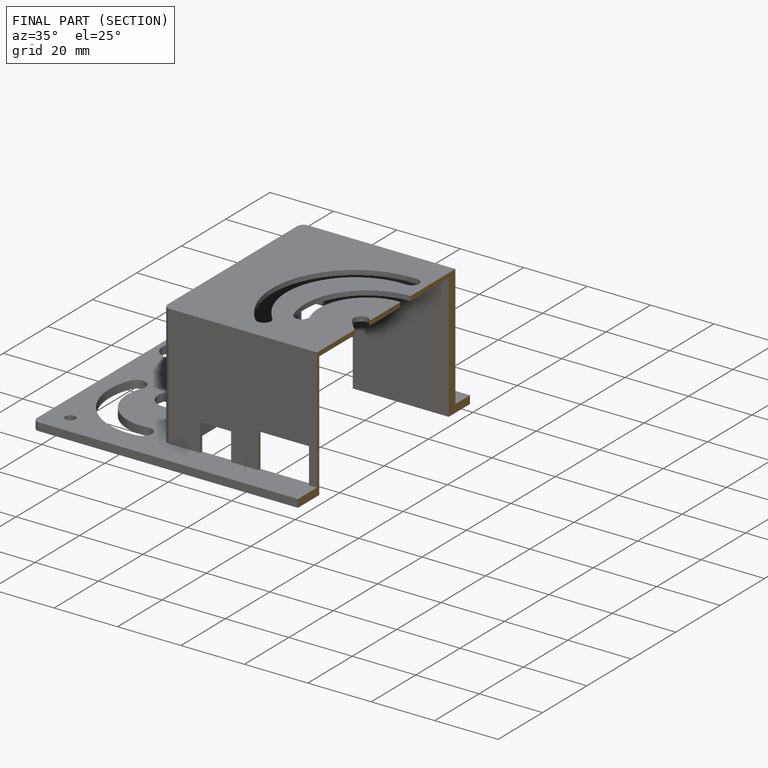
[diagram: finished part — half-section view (interior)]
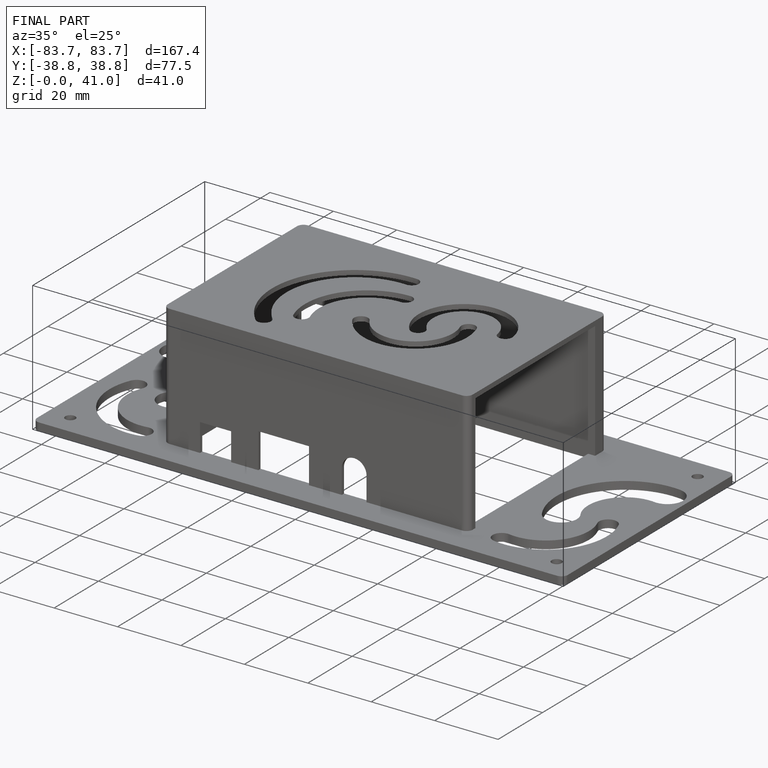
[diagram: finished part — iso view with bounding-box wireframe]
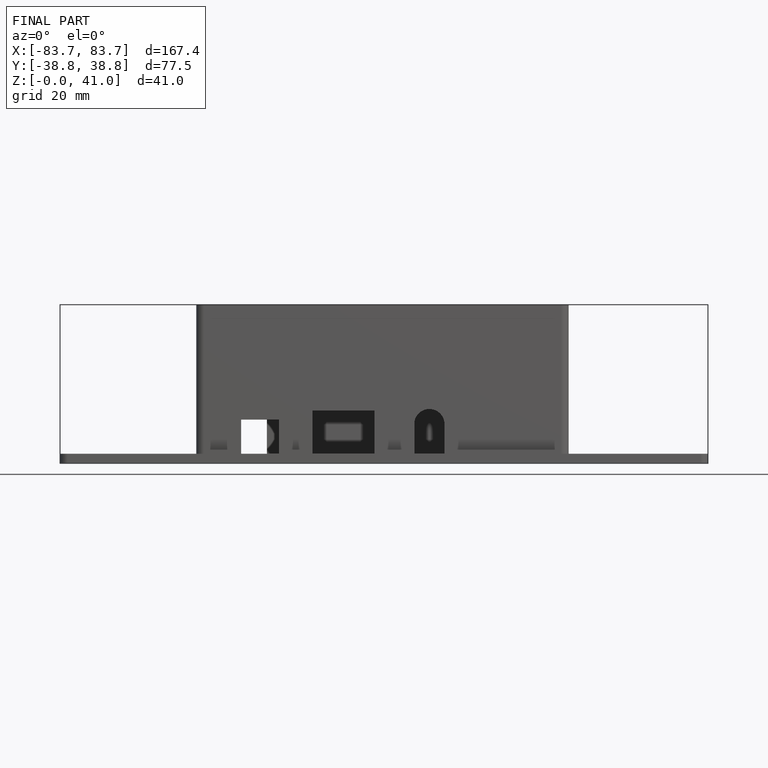
[diagram: finished part — front view with bounding-box wireframe]
